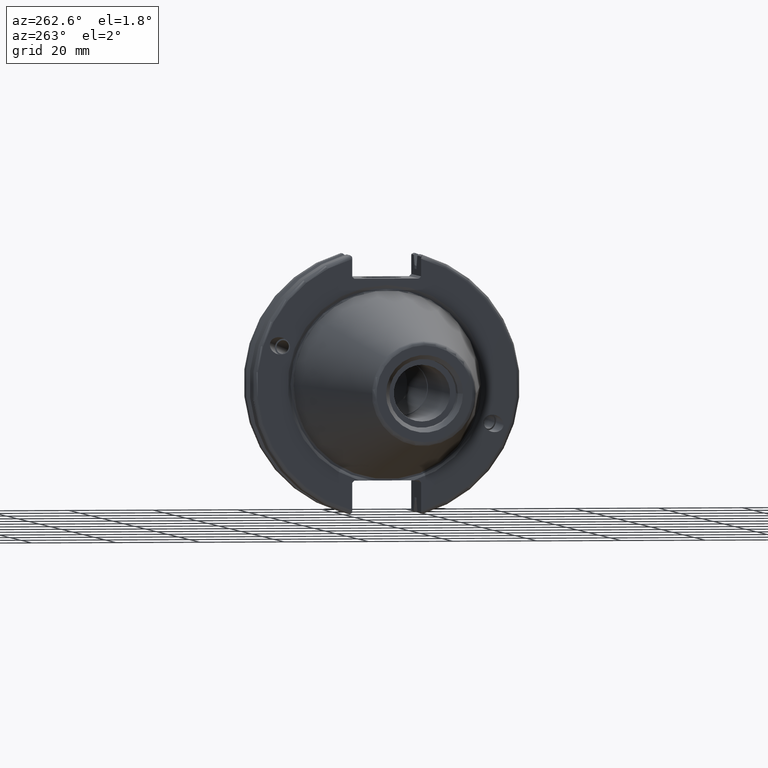
[diagram: clean part render]
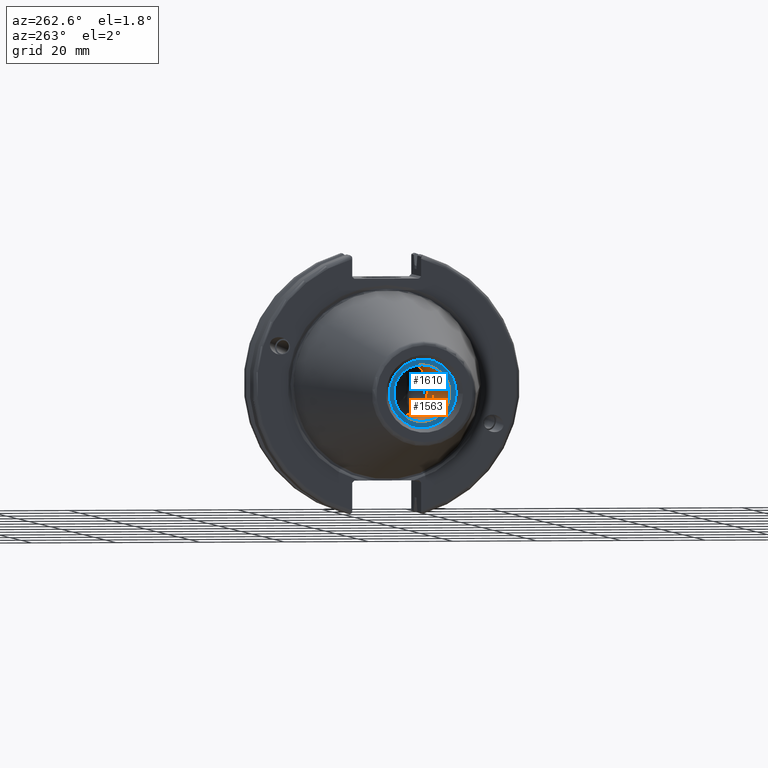
[diagram: same view with the hole feature highlighted: cylindrical wall and planar end face, labeled with their STEP entity ids]
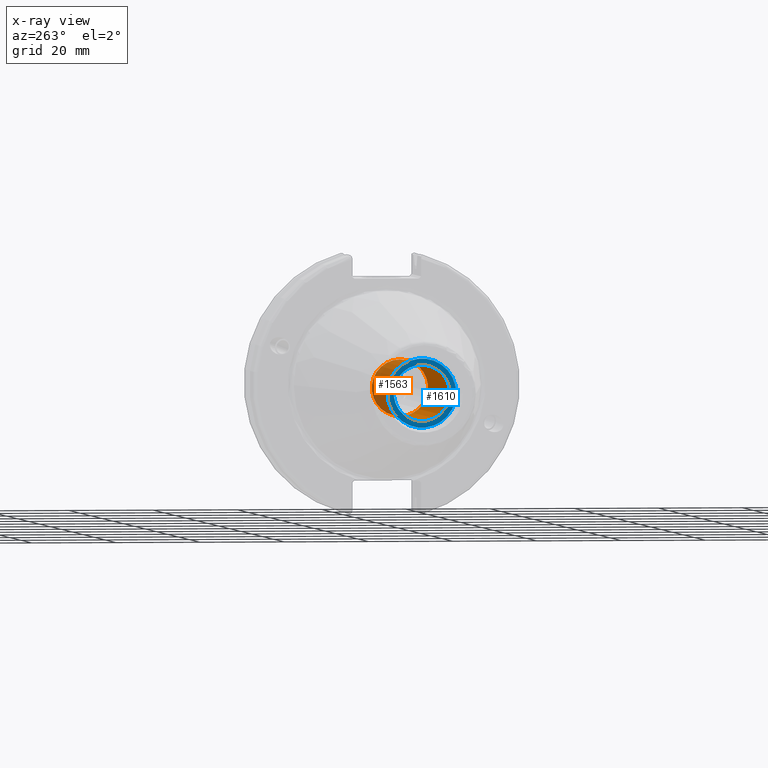
[diagram: x-ray of the same camera — body ghosted, the hole faces saturated]
A machine part, auxiliary view. The highlighted faces form one hole feature of diameter 13.3858 mm: the cylindrical wall (entity #1563, orange) and its adjacent planar end face (entity #1610, blue) — they share a circular edge in the B-rep.
The next image is the same camera in x-ray (body ghosted, the hole faces saturated) — the bore reads through the body.
Wall:
#103=CYLINDRICAL_SURFACE('',#1736,6.6929);
#211=LINE('',#2743,#309);
#309=VECTOR('',#2073,6.6929);
#415=FACE_OUTER_BOUND('',#512,.T.);
#512=EDGE_LOOP('',(#1255,#1256,#1257,#1258));
#609=CIRCLE('',#1735,6.6929);
#610=CIRCLE('',#1737,6.6929);
#736=VERTEX_POINT('',#2737);
#737=VERTEX_POINT('',#2741);
#927=EDGE_CURVE('',#736,#736,#609,.T.);
#929=EDGE_CURVE('',#737,#737,#610,.T.);
#930=EDGE_CURVE('',#737,#736,#211,.T.);
#1255=ORIENTED_EDGE('',*,*,#929,.F.);
#1256=ORIENTED_EDGE('',*,*,#930,.T.);
#1257=ORIENTED_EDGE('',*,*,#927,.F.);
#1258=ORIENTED_EDGE('',*,*,#930,.F.);
#1563=ADVANCED_FACE('',(#415),#103,.F.);
#1735=AXIS2_PLACEMENT_3D('',#2738,#2066,#2067);
#1736=AXIS2_PLACEMENT_3D('',#2740,#2069,#2070);
#1737=AXIS2_PLACEMENT_3D('',#2742,#2071,#2072);
#2066=DIRECTION('center_axis',(-1.,0.,0.));
#2067=DIRECTION('ref_axis',(0.,0.,1.));
#2069=DIRECTION('center_axis',(-1.,0.,0.));
#2070=DIRECTION('ref_axis',(0.,0.,1.));
#2071=DIRECTION('center_axis',(1.,0.,0.));
#2072=DIRECTION('ref_axis',(0.,0.,1.));
#2073=DIRECTION('',(1.,0.,0.));
#2737=CARTESIAN_POINT('',(-23.25,-8.19643856201332E-16,-6.6929));
#2738=CARTESIAN_POINT('Origin',(-23.25,0.,0.));
#2740=CARTESIAN_POINT('Origin',(-45.75,0.,0.));
#2741=CARTESIAN_POINT('',(-63.45,8.19643856201332E-16,-6.6929));
#2742=CARTESIAN_POINT('Origin',(-63.45,0.,0.));
#2743=CARTESIAN_POINT('',(-45.75,-8.19643856201332E-16,-6.6929));
End face:
#126=FACE_BOUND('',#565,.T.);
#162=PLANE('',#1814);
#462=FACE_OUTER_BOUND('',#564,.T.);
#564=EDGE_LOOP('',(#1509));
#565=EDGE_LOOP('',(#1510));
#610=CIRCLE('',#1737,6.6929);
#641=CIRCLE('',#1815,8.14999999999999);
#737=VERTEX_POINT('',#2741);
#797=VERTEX_POINT('',#3070);
#929=EDGE_CURVE('',#737,#737,#610,.T.);
#1035=EDGE_CURVE('',#797,#797,#641,.T.);
#1509=ORIENTED_EDGE('',*,*,#1035,.F.);
#1510=ORIENTED_EDGE('',*,*,#929,.T.);
#1610=ADVANCED_FACE('',(#462,#126),#162,.T.);
#1737=AXIS2_PLACEMENT_3D('',#2742,#2071,#2072);
#1814=AXIS2_PLACEMENT_3D('',#3069,#2274,#2275);
#1815=AXIS2_PLACEMENT_3D('',#3071,#2276,#2277);
#2071=DIRECTION('center_axis',(1.,0.,0.));
#2072=DIRECTION('ref_axis',(0.,0.,1.));
#2274=DIRECTION('center_axis',(-1.,0.,0.));
#2275=DIRECTION('ref_axis',(0.,0.,1.));
#2276=DIRECTION('center_axis',(1.,0.,0.));
#2277=DIRECTION('ref_axis',(0.,0.,-1.));
#2741=CARTESIAN_POINT('',(-63.45,8.19643856201332E-16,-6.6929));
#2742=CARTESIAN_POINT('Origin',(-63.45,0.,0.));
#3069=CARTESIAN_POINT('Origin',(-63.45,8.14999999999999,0.));
#3070=CARTESIAN_POINT('',(-63.45,-8.14999999999999,-9.98087141305092E-16));
#3071=CARTESIAN_POINT('Origin',(-63.45,0.,0.));